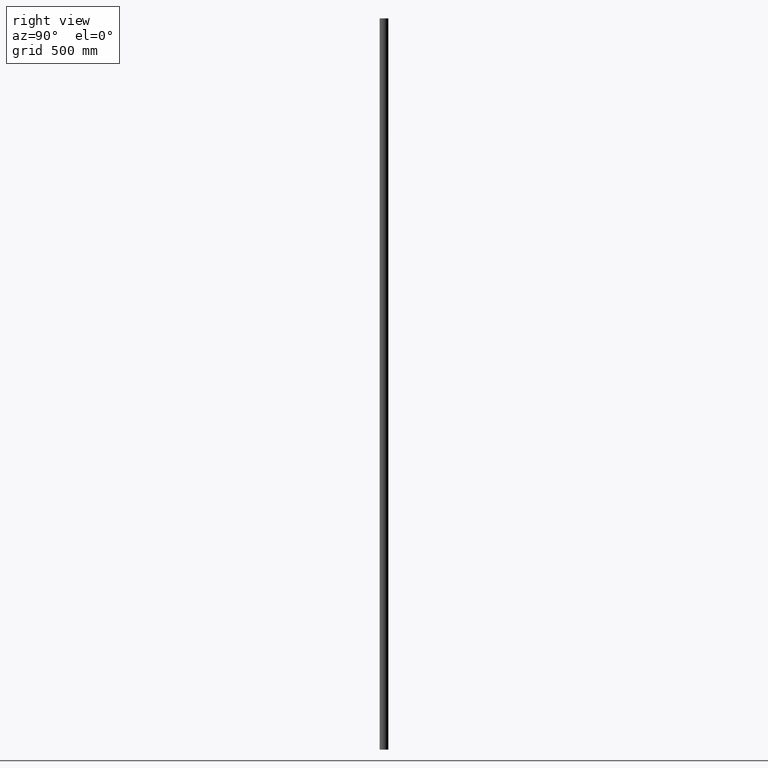
[diagram: clean part render]
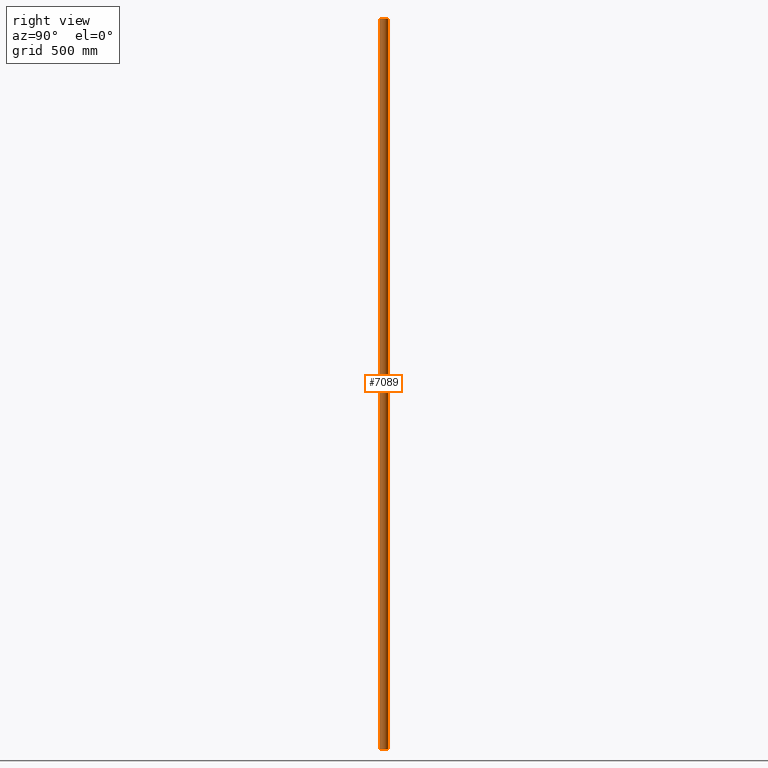
[diagram: same view with one face highlighted and labeled with its STEP entity id]
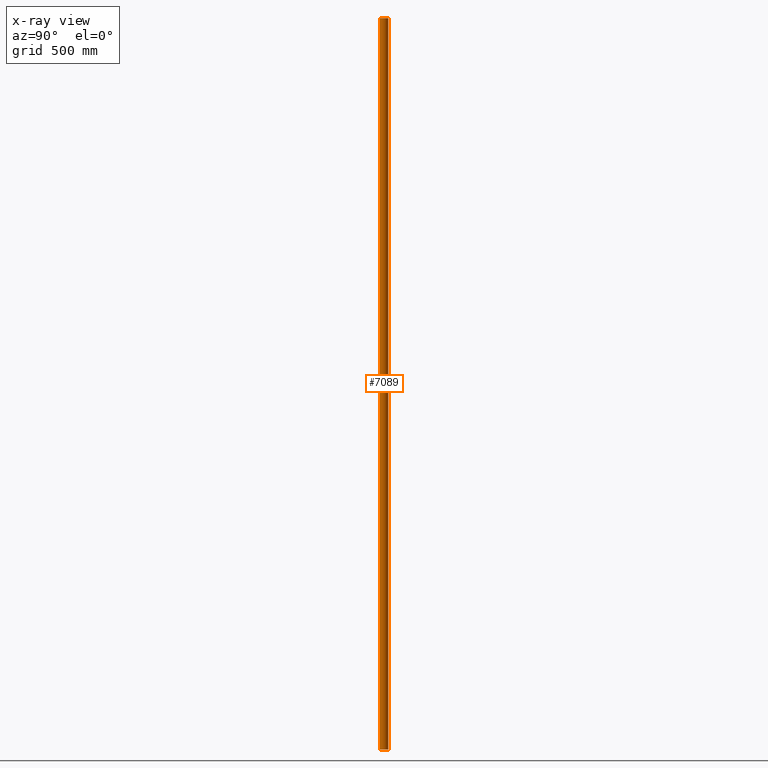
[diagram: x-ray of the same camera — body ghosted, the highlighted face saturated]
A machine part, right view. The second image highlights one B-rep face of the part: STEP entity #7089.
The next image is the same camera in x-ray: the body ghosted, the highlighted face saturated — about 0% of this face is hidden behind the body in this view.
In plain terms, the highlighted cylindrical surface (edge-blend (fillet) strip) has radius 21.2 mm, axis along (0, 0, 1).
Its self-contained STEP definition (entity closure, byte-faithful):
#368 = DIRECTION ( 'NONE',  ( 0.000000000000000000, 0.000000000000000000, 1.000000000000000000 ) ) ;
#1157 = CARTESIAN_POINT ( 'NONE',  ( 8.179191214543138373E-16, 14.34712514756876445, -1500.000000000000000 ) ) ;
#1482 = VERTEX_POINT ( 'NONE', #14665 ) ;
#1844 = AXIS2_PLACEMENT_3D ( 'NONE', #8119, #368, #11983 ) ;
#2896 = VERTEX_POINT ( 'NONE', #13328 ) ;
#2970 = CYLINDRICAL_SURFACE ( 'NONE', #9537, 21.19999999999999574 ) ;
#3187 = VECTOR ( 'NONE', #11196, 1000.000000000000000 ) ;
#3961 = VECTOR ( 'NONE', #8244, 1000.000000000000000 ) ;
#4226 = EDGE_CURVE ( 'NONE', #9486, #4233, #12511, .T. ) ;
#4233 = VERTEX_POINT ( 'NONE', #8024 ) ;
#4274 = CARTESIAN_POINT ( 'NONE',  ( -15.45833333333332682, -0.1608013257614476776, -1500.000000000000000 ) ) ;
#4363 = LINE ( 'NONE', #4274, #3961 ) ;
#5587 = FACE_OUTER_BOUND ( 'NONE', #6505, .T. ) ;
#6294 = CARTESIAN_POINT ( 'NONE',  ( 15.45833333333333037, -0.1608013257614459568, 1500.000000000000000 ) ) ;
#6505 = EDGE_LOOP ( 'NONE', ( #9740, #8001, #11829, #16643 ) ) ;
#7089 = ADVANCED_FACE ( 'NONE', ( #5587 ), #2970, .T. ) ;
#7270 = AXIS2_PLACEMENT_3D ( 'NONE', #15595, #13077, #10416 ) ;
#7446 = EDGE_CURVE ( 'NONE', #2896, #4233, #4363, .T. ) ;
#8001 = ORIENTED_EDGE ( 'NONE', *, *, #13148, .F. ) ;
#8024 = CARTESIAN_POINT ( 'NONE',  ( -15.45833333333332682, -0.1608013257614476776, 1500.000000000000000 ) ) ;
#8119 = CARTESIAN_POINT ( 'NONE',  ( 8.179191214543138373E-16, 14.34712514756876445, -1500.000000000000000 ) ) ;
#8244 = DIRECTION ( 'NONE',  ( 0.000000000000000000, 0.000000000000000000, 1.000000000000000000 ) ) ;
#9486 = VERTEX_POINT ( 'NONE', #6294 ) ;
#9537 = AXIS2_PLACEMENT_3D ( 'NONE', #1157, #10080, #10128 ) ;
#9716 = EDGE_CURVE ( 'NONE', #1482, #2896, #10582, .T. ) ;
#9740 = ORIENTED_EDGE ( 'NONE', *, *, #4226, .F. ) ;
#10080 = DIRECTION ( 'NONE',  ( 0.000000000000000000, 0.000000000000000000, 1.000000000000000000 ) ) ;
#10128 = DIRECTION ( 'NONE',  ( 1.000000000000000000, 0.000000000000000000, 0.000000000000000000 ) ) ;
#10416 = DIRECTION ( 'NONE',  ( 1.000000000000000000, 0.000000000000000000, 0.000000000000000000 ) ) ;
#10582 = CIRCLE ( 'NONE', #1844, 21.19999999999999574 ) ;
#11196 = DIRECTION ( 'NONE',  ( 0.000000000000000000, 0.000000000000000000, 1.000000000000000000 ) ) ;
#11263 = LINE ( 'NONE', #15874, #3187 ) ;
#11829 = ORIENTED_EDGE ( 'NONE', *, *, #9716, .T. ) ;
#11983 = DIRECTION ( 'NONE',  ( 1.000000000000000000, 0.000000000000000000, 0.000000000000000000 ) ) ;
#12511 = CIRCLE ( 'NONE', #7270, 21.19999999999999574 ) ;
#13077 = DIRECTION ( 'NONE',  ( 0.000000000000000000, 0.000000000000000000, 1.000000000000000000 ) ) ;
#13148 = EDGE_CURVE ( 'NONE', #1482, #9486, #11263, .T. ) ;
#13328 = CARTESIAN_POINT ( 'NONE',  ( -15.45833333333332682, -0.1608013257614476776, -1500.000000000000000 ) ) ;
#14665 = CARTESIAN_POINT ( 'NONE',  ( 15.45833333333333037, -0.1608013257614459568, -1500.000000000000000 ) ) ;
#15595 = CARTESIAN_POINT ( 'NONE',  ( 8.179191214543138373E-16, 14.34712514756876445, 1500.000000000000000 ) ) ;
#15874 = CARTESIAN_POINT ( 'NONE',  ( 15.45833333333333037, -0.1608013257614459568, -1500.000000000000000 ) ) ;
#16643 = ORIENTED_EDGE ( 'NONE', *, *, #7446, .T. ) ;